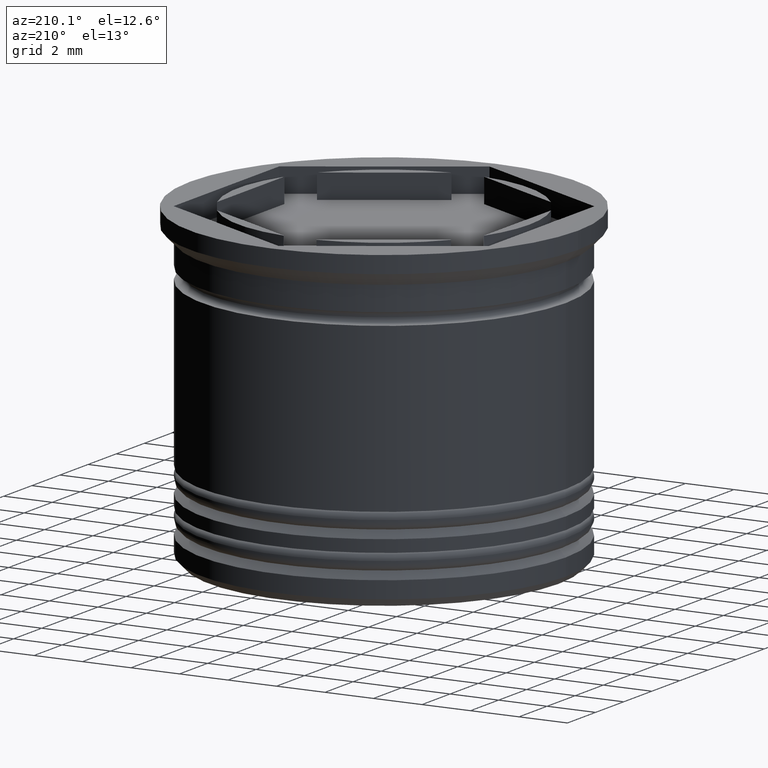
[diagram: clean part render]
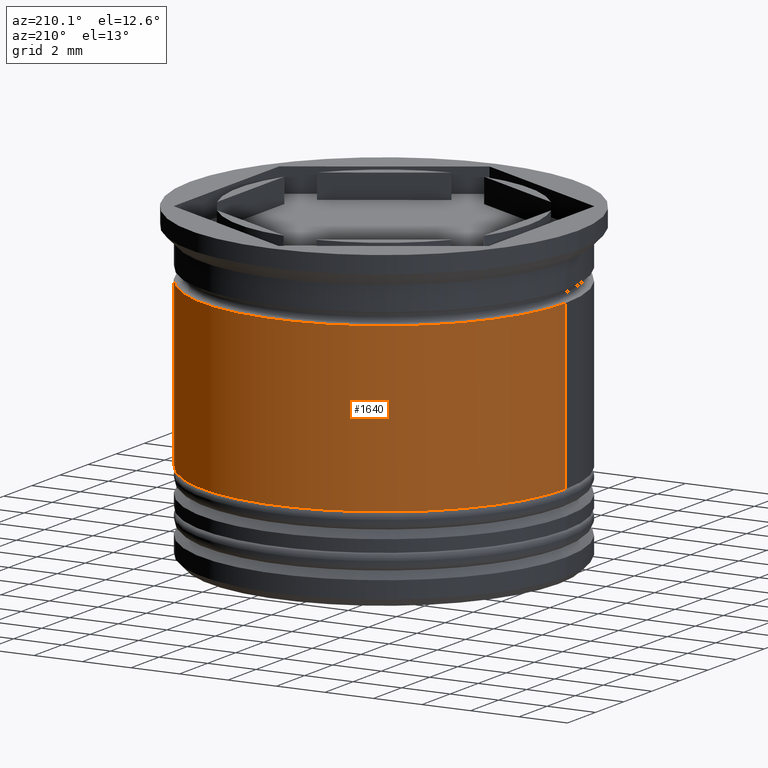
[diagram: same view with one face highlighted and labeled with its STEP entity id]
A machine part, auxiliary view. The second image highlights one B-rep face of the part: STEP entity #1640.
In plain terms, the highlighted cylindrical surface (partial cylindrical patch) has radius 7.5 mm, axis along (-0, -0, 1).
Its self-contained STEP definition (entity closure, byte-faithful):
#66 = EDGE_CURVE ( 'NONE', #1364, #1653, #1239, .T. ) ;
#161 = AXIS2_PLACEMENT_3D ( 'NONE', #825, #981, #314 ) ;
#191 = CIRCLE ( 'NONE', #502, 7.499999999999998224 ) ;
#211 = EDGE_CURVE ( 'NONE', #927, #1710, #710, .T. ) ;
#221 = VECTOR ( 'NONE', #1327, 1000.000000000000000 ) ;
#252 = AXIS2_PLACEMENT_3D ( 'NONE', #363, #1372, #1394 ) ;
#314 = DIRECTION ( 'NONE',  ( 1.000000000000000000, 0.000000000000000000, 0.000000000000000000 ) ) ;
#363 = CARTESIAN_POINT ( 'NONE',  ( 0.000000000000000000, 0.000000000000000000, -9.500000000000000000 ) ) ;
#384 = EDGE_CURVE ( 'NONE', #1710, #1653, #191, .T. ) ;
#502 = AXIS2_PLACEMENT_3D ( 'NONE', #1056, #1332, #1197 ) ;
#657 = ORIENTED_EDGE ( 'NONE', *, *, #211, .F. ) ;
#710 = LINE ( 'NONE', #1649, #221 ) ;
#739 = EDGE_CURVE ( 'NONE', #927, #1364, #961, .T. ) ;
#780 = ORIENTED_EDGE ( 'NONE', *, *, #384, .F. ) ;
#796 = ORIENTED_EDGE ( 'NONE', *, *, #66, .T. ) ;
#825 = CARTESIAN_POINT ( 'NONE',  ( 0.000000000000000000, 0.000000000000000000, 0.000000000000000000 ) ) ;
#927 = VERTEX_POINT ( 'NONE', #1862 ) ;
#961 = CIRCLE ( 'NONE', #252, 7.500000000000001776 ) ;
#981 = DIRECTION ( 'NONE',  ( -0.000000000000000000, -0.000000000000000000, 1.000000000000000000 ) ) ;
#1032 = FACE_OUTER_BOUND ( 'NONE', #1078, .T. ) ;
#1056 = CARTESIAN_POINT ( 'NONE',  ( 0.000000000000000000, 0.000000000000000000, -2.700000000000000178 ) ) ;
#1078 = EDGE_LOOP ( 'NONE', ( #1645, #796, #780, #657 ) ) ;
#1197 = DIRECTION ( 'NONE',  ( 1.000000000000000000, 0.000000000000000000, 0.000000000000000000 ) ) ;
#1239 = LINE ( 'NONE', #1669, #1251 ) ;
#1251 = VECTOR ( 'NONE', #1689, 1000.000000000000000 ) ;
#1327 = DIRECTION ( 'NONE',  ( -0.000000000000000000, -0.000000000000000000, 1.000000000000000000 ) ) ;
#1332 = DIRECTION ( 'NONE',  ( -0.000000000000000000, -0.000000000000000000, 1.000000000000000000 ) ) ;
#1364 = VERTEX_POINT ( 'NONE', #1600 ) ;
#1372 = DIRECTION ( 'NONE',  ( -0.000000000000000000, -0.000000000000000000, 1.000000000000000000 ) ) ;
#1386 = CARTESIAN_POINT ( 'NONE',  ( -7.499999999999998224, 9.184850993605145972E-16, -2.700000000000000178 ) ) ;
#1394 = DIRECTION ( 'NONE',  ( 1.000000000000000000, 0.000000000000000000, 0.000000000000000000 ) ) ;
#1600 = CARTESIAN_POINT ( 'NONE',  ( -7.500000000000001776, 9.184850993605149917E-16, -9.500000000000000000 ) ) ;
#1640 = ADVANCED_FACE ( 'NONE', ( #1032 ), #1651, .T. ) ;
#1645 = ORIENTED_EDGE ( 'NONE', *, *, #739, .T. ) ;
#1649 = CARTESIAN_POINT ( 'NONE',  ( 7.500000000000000000, 0.000000000000000000, 0.000000000000000000 ) ) ;
#1651 = CYLINDRICAL_SURFACE ( 'NONE', #161, 7.500000000000000000 ) ;
#1653 = VERTEX_POINT ( 'NONE', #1386 ) ;
#1669 = CARTESIAN_POINT ( 'NONE',  ( -7.500000000000000000, 9.184850993605147944E-16, 0.000000000000000000 ) ) ;
#1689 = DIRECTION ( 'NONE',  ( -0.000000000000000000, -0.000000000000000000, 1.000000000000000000 ) ) ;
#1710 = VERTEX_POINT ( 'NONE', #1908 ) ;
#1862 = CARTESIAN_POINT ( 'NONE',  ( 7.500000000000001776, 0.000000000000000000, -9.500000000000000000 ) ) ;
#1908 = CARTESIAN_POINT ( 'NONE',  ( 7.499999999999998224, 0.000000000000000000, -2.700000000000000178 ) ) ;